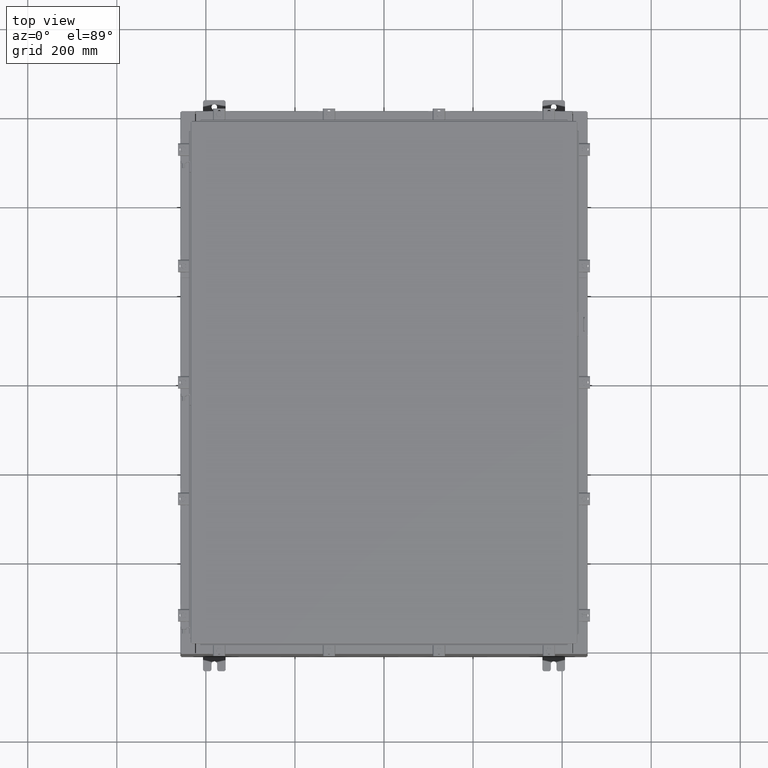
[diagram: clean part render]
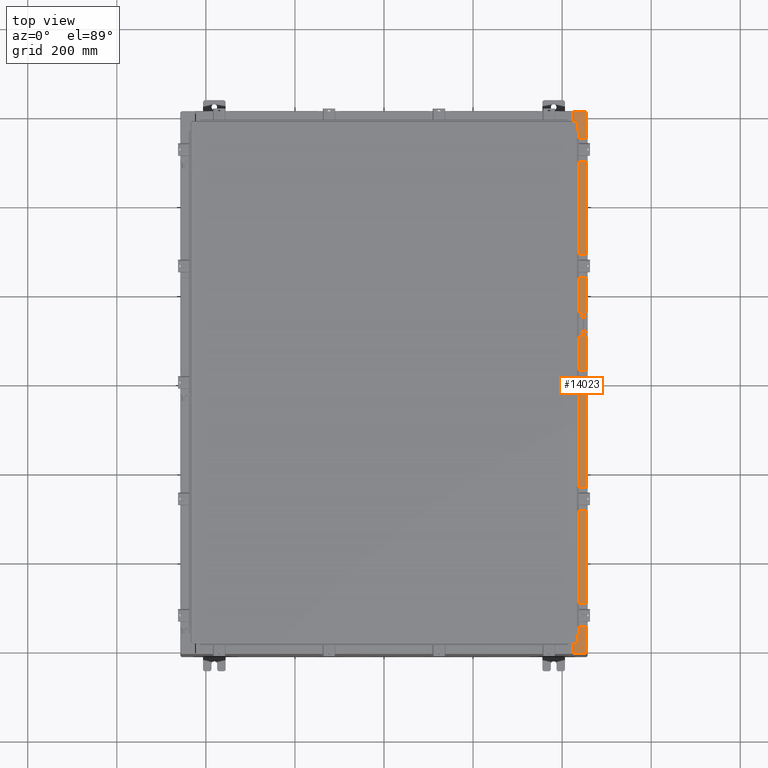
[diagram: same view with one face highlighted and labeled with its STEP entity id]
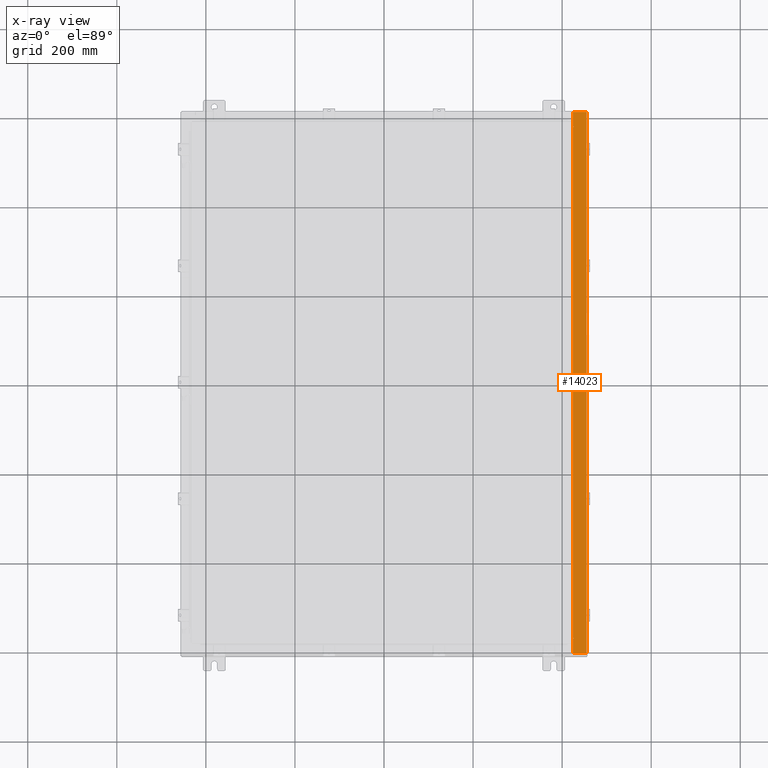
[diagram: x-ray of the same camera — body ghosted, the highlighted face saturated]
A machine part, top view. The second image highlights one B-rep face of the part: STEP entity #14023.
The next image is the same camera in x-ray: the body ghosted, the highlighted face saturated — about 0% of this face is hidden behind the body in this view.
In plain terms, the highlighted planar face has unit normal (-0, 0, -1).
Its self-contained STEP definition (entity closure, byte-faithful):
#47 = VECTOR ( 'NONE', #18461, 39.37007874015748100 ) ;
#296 = DIRECTION ( 'NONE',  ( 1.000000000000000000, 8.144358738339254500E-032, -7.132762385546384700E-015 ) ) ;
#301 = LINE ( 'NONE', #19105, #26988 ) ;
#356 = CARTESIAN_POINT ( 'NONE',  ( 16.75005000000005100, -22.59374999999998900, 15.92530000000000900 ) ) ;
#371 = DIRECTION ( 'NONE',  ( -0.0000000000000000000, 1.000000000000000000, -0.0000000000000000000 ) ) ;
#426 = VERTEX_POINT ( 'NONE', #8034 ) ;
#444 = CARTESIAN_POINT ( 'NONE',  ( 16.69970000000005000, 22.63109999999996800, 15.92530000000000500 ) ) ;
#693 = DIRECTION ( 'NONE',  ( 1.000000000000000000, 0.0000000000000000000, 0.0000000000000000000 ) ) ;
#697 = EDGE_CURVE ( 'NONE', #3658, #19313, #15690, .T. ) ;
#833 = LINE ( 'NONE', #356, #5706 ) ;
#981 = CARTESIAN_POINT ( 'NONE',  ( 17.91230000000005200, 23.92529999999998600, 15.92530000000000000 ) ) ;
#1901 = DIRECTION ( 'NONE',  ( -1.000000000000000000, 0.0000000000000000000, 7.132762385546384700E-015 ) ) ;
#2606 = CARTESIAN_POINT ( 'NONE',  ( 16.69970000000005000, -22.63109999999998600, 15.92530000000000500 ) ) ;
#2760 = EDGE_CURVE ( 'NONE', #3658, #19265, #25569, .T. ) ;
#2841 = VECTOR ( 'NONE', #7581, 39.37007874015748100 ) ;
#3658 = VERTEX_POINT ( 'NONE', #981 ) ;
#3824 = CARTESIAN_POINT ( 'NONE',  ( 16.75005000000005100, 22.63109999999996800, 15.92530000000000500 ) ) ;
#4471 = FACE_OUTER_BOUND ( 'NONE', #17104, .T. ) ;
#4473 = AXIS2_PLACEMENT_3D ( 'NONE', #23310, #10616, #25435 ) ;
#4650 = EDGE_CURVE ( 'NONE', #19265, #23095, #16823, .T. ) ;
#4866 = ORIENTED_EDGE ( 'NONE', *, *, #5238, .F. ) ;
#4884 = VECTOR ( 'NONE', #371, 39.37007874015748100 ) ;
#5041 = ORIENTED_EDGE ( 'NONE', *, *, #22244, .T. ) ;
#5235 = CARTESIAN_POINT ( 'NONE',  ( 16.71270000000005100, 22.59374999999997200, 15.92530000000000900 ) ) ;
#5238 = EDGE_CURVE ( 'NONE', #25245, #16381, #10492, .T. ) ;
#5590 = CARTESIAN_POINT ( 'NONE',  ( 16.75005000000005100, -22.63109999999998600, 15.92530000000000500 ) ) ;
#5706 = VECTOR ( 'NONE', #17180, 39.37007874015748100 ) ;
#5995 = CARTESIAN_POINT ( 'NONE',  ( 1.138497651359581700E-013, 0.0000000000000000000, 15.92530000000012600 ) ) ;
#6089 = AXIS2_PLACEMENT_3D ( 'NONE', #5995, #14482, #1901 ) ;
#6428 = EDGE_CURVE ( 'NONE', #26679, #6784, #9789, .T. ) ;
#6617 = DIRECTION ( 'NONE',  ( 1.000000000000000000, 0.0000000000000000000, 4.340572780400098900E-014 ) ) ;
#6784 = VERTEX_POINT ( 'NONE', #3824 ) ;
#7010 = EDGE_CURVE ( 'NONE', #16381, #26679, #16384, .T. ) ;
#7135 = ORIENTED_EDGE ( 'NONE', *, *, #16586, .F. ) ;
#7581 = DIRECTION ( 'NONE',  ( -1.000000000000000000, 0.0000000000000000000, -4.340572780400098900E-014 ) ) ;
#7896 = VECTOR ( 'NONE', #296, 39.37007874015748100 ) ;
#7956 = AXIS2_PLACEMENT_3D ( 'NONE', #9629, #9452, #9367 ) ;
#8034 = CARTESIAN_POINT ( 'NONE',  ( 16.75005000000005100, -22.59374999999998900, 15.92530000000000500 ) ) ;
#8160 = ORIENTED_EDGE ( 'NONE', *, *, #13369, .T. ) ;
#8218 = ORIENTED_EDGE ( 'NONE', *, *, #4650, .T. ) ;
#9367 = DIRECTION ( 'NONE',  ( 1.000000000000000000, 0.0000000000000000000, 0.0000000000000000000 ) ) ;
#9408 = VECTOR ( 'NONE', #14345, 39.37007874015748100 ) ;
#9452 = DIRECTION ( 'NONE',  ( 7.132762385546384700E-015, 0.0000000000000000000, 1.000000000000000000 ) ) ;
#9629 = CARTESIAN_POINT ( 'NONE',  ( 16.75005000000005100, 22.61242499999997000, 15.92530000000000900 ) ) ;
#9789 = CIRCLE ( 'NONE', #7956, 0.01867499999999949400 ) ;
#9793 = CARTESIAN_POINT ( 'NONE',  ( 16.75005000000005100, 22.63109999999996800, 15.92530000000000900 ) ) ;
#9851 = CARTESIAN_POINT ( 'NONE',  ( 16.69970000000005000, -23.92529999999998900, 15.92530000000000500 ) ) ;
#9953 = EDGE_CURVE ( 'NONE', #24208, #426, #17932, .T. ) ;
#10492 = LINE ( 'NONE', #18066, #4884 ) ;
#10616 = DIRECTION ( 'NONE',  ( 7.132762385546384700E-015, 0.0000000000000000000, 1.000000000000000000 ) ) ;
#10777 = CARTESIAN_POINT ( 'NONE',  ( 16.69970000000005000, -22.63109999999998600, 15.92530000000000500 ) ) ;
#11956 = ORIENTED_EDGE ( 'NONE', *, *, #2760, .T. ) ;
#12611 = LINE ( 'NONE', #10777, #16935 ) ;
#13106 = DIRECTION ( 'NONE',  ( -1.000000000000000000, 4.379057701015053300E-047, 7.132762385546384700E-015 ) ) ;
#13256 = CARTESIAN_POINT ( 'NONE',  ( 1.138497651359581700E-013, 23.92529999999998600, 15.92530000000012600 ) ) ;
#13369 = EDGE_CURVE ( 'NONE', #16644, #18779, #301, .T. ) ;
#13517 = LINE ( 'NONE', #25542, #7896 ) ;
#14023 = ADVANCED_FACE ( 'NONE', ( #4471 ), #20819, .F. ) ;
#14345 = DIRECTION ( 'NONE',  ( -0.0000000000000000000, -1.000000000000000000, -0.0000000000000000000 ) ) ;
#14439 = CARTESIAN_POINT ( 'NONE',  ( 17.91230000000005200, -23.92529999999998900, 15.92530000000000000 ) ) ;
#14482 = DIRECTION ( 'NONE',  ( -7.132762385546384700E-015, 0.0000000000000000000, -1.000000000000000000 ) ) ;
#15551 = ORIENTED_EDGE ( 'NONE', *, *, #6428, .F. ) ;
#15688 = ORIENTED_EDGE ( 'NONE', *, *, #16013, .F. ) ;
#15690 = LINE ( 'NONE', #14439, #9408 ) ;
#16013 = EDGE_CURVE ( 'NONE', #426, #25245, #833, .T. ) ;
#16381 = VERTEX_POINT ( 'NONE', #20727 ) ;
#16384 = LINE ( 'NONE', #5235, #21358 ) ;
#16586 = EDGE_CURVE ( 'NONE', #16644, #24208, #12611, .T. ) ;
#16644 = VERTEX_POINT ( 'NONE', #2606 ) ;
#16689 = CARTESIAN_POINT ( 'NONE',  ( 16.75005000000005100, 22.59374999999997200, 15.92530000000000500 ) ) ;
#16823 = LINE ( 'NONE', #18553, #47 ) ;
#16935 = VECTOR ( 'NONE', #6617, 39.37007874015748100 ) ;
#17104 = EDGE_LOOP ( 'NONE', ( #7135, #8160, #5041, #22661, #11956, #8218, #22859, #15551, #26979, #4866, #15688, #26148 ) ) ;
#17180 = DIRECTION ( 'NONE',  ( -1.000000000000000000, 0.0000000000000000000, 0.0000000000000000000 ) ) ;
#17932 = CIRCLE ( 'NONE', #4473, 0.01867499999999949400 ) ;
#18066 = CARTESIAN_POINT ( 'NONE',  ( 16.71270000000005100, -22.59374999999998900, 15.92530000000000900 ) ) ;
#18461 = DIRECTION ( 'NONE',  ( 3.161623214578966600E-031, -1.000000000000000000, -2.255110714221909800E-045 ) ) ;
#18553 = CARTESIAN_POINT ( 'NONE',  ( 16.69970000000005000, 0.0000000000000000000, 15.92530000000000500 ) ) ;
#18779 = VERTEX_POINT ( 'NONE', #9851 ) ;
#19105 = CARTESIAN_POINT ( 'NONE',  ( 16.69970000000005000, 0.0000000000000000000, 15.92530000000000500 ) ) ;
#19265 = VERTEX_POINT ( 'NONE', #21436 ) ;
#19313 = VERTEX_POINT ( 'NONE', #25844 ) ;
#20727 = CARTESIAN_POINT ( 'NONE',  ( 16.71270000000005100, 22.59374999999997200, 15.92530000000000900 ) ) ;
#20819 = PLANE ( 'NONE',  #6089 ) ;
#21211 = DIRECTION ( 'NONE',  ( 3.161623214578966600E-031, -1.000000000000000000, -2.255110714221909800E-045 ) ) ;
#21358 = VECTOR ( 'NONE', #693, 39.37007874015748100 ) ;
#21436 = CARTESIAN_POINT ( 'NONE',  ( 16.69970000000005000, 23.92529999999998200, 15.92530000000000500 ) ) ;
#22244 = EDGE_CURVE ( 'NONE', #18779, #19313, #13517, .T. ) ;
#22661 = ORIENTED_EDGE ( 'NONE', *, *, #697, .F. ) ;
#22859 = ORIENTED_EDGE ( 'NONE', *, *, #25766, .F. ) ;
#23095 = VERTEX_POINT ( 'NONE', #444 ) ;
#23310 = CARTESIAN_POINT ( 'NONE',  ( 16.75005000000005100, -22.61242499999998800, 15.92530000000000900 ) ) ;
#24208 = VERTEX_POINT ( 'NONE', #5590 ) ;
#24911 = VECTOR ( 'NONE', #13106, 39.37007874015748100 ) ;
#25040 = CARTESIAN_POINT ( 'NONE',  ( 16.71270000000005100, -22.59374999999998900, 15.92530000000000900 ) ) ;
#25245 = VERTEX_POINT ( 'NONE', #25040 ) ;
#25435 = DIRECTION ( 'NONE',  ( 1.000000000000000000, 0.0000000000000000000, 0.0000000000000000000 ) ) ;
#25542 = CARTESIAN_POINT ( 'NONE',  ( 1.138497651359581700E-013, -23.92529999999998900, 15.92530000000012600 ) ) ;
#25569 = LINE ( 'NONE', #13256, #24911 ) ;
#25766 = EDGE_CURVE ( 'NONE', #6784, #23095, #25961, .T. ) ;
#25844 = CARTESIAN_POINT ( 'NONE',  ( 17.91230000000005200, -23.92529999999998900, 15.92530000000000000 ) ) ;
#25961 = LINE ( 'NONE', #9793, #2841 ) ;
#26148 = ORIENTED_EDGE ( 'NONE', *, *, #9953, .F. ) ;
#26679 = VERTEX_POINT ( 'NONE', #16689 ) ;
#26979 = ORIENTED_EDGE ( 'NONE', *, *, #7010, .F. ) ;
#26988 = VECTOR ( 'NONE', #21211, 39.37007874015748100 ) ;